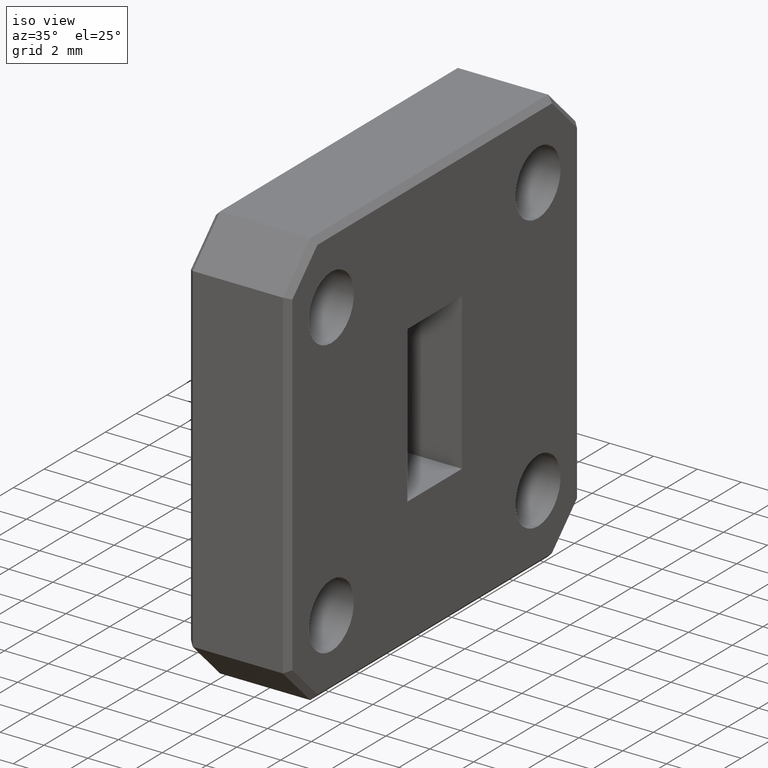
[diagram: clean part render]
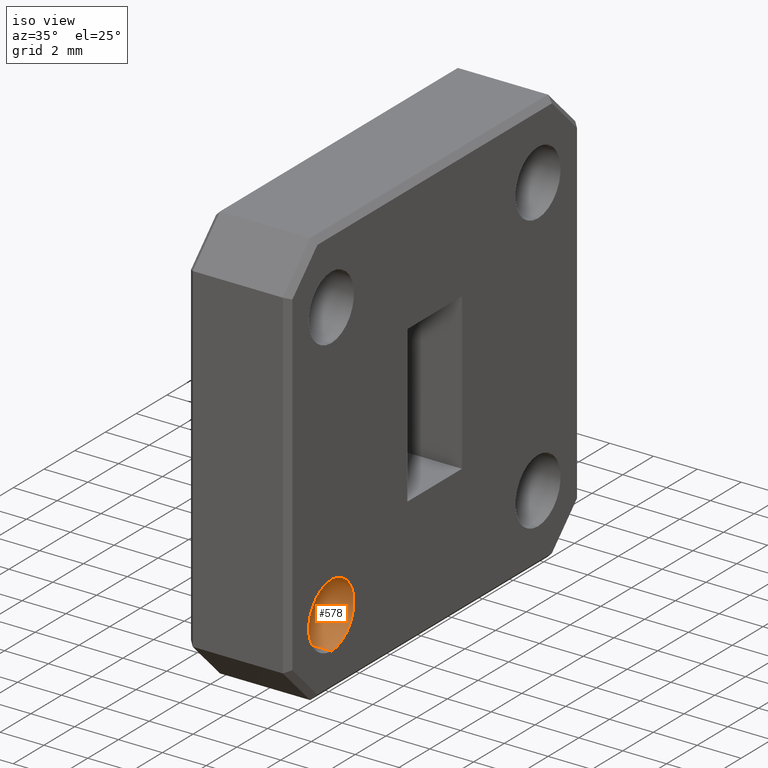
[diagram: same view with one face highlighted and labeled with its STEP entity id]
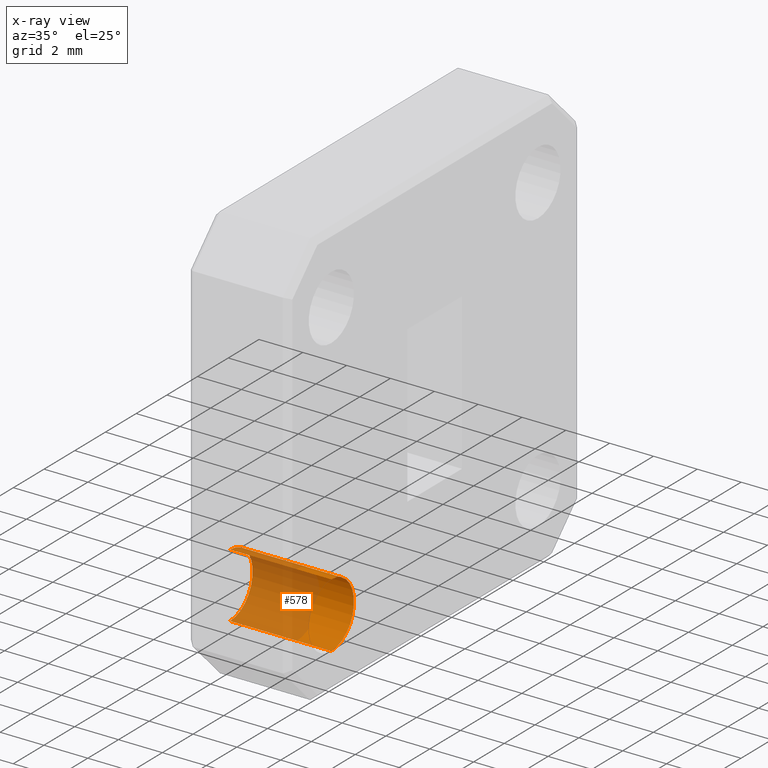
[diagram: x-ray of the same camera — body ghosted, the highlighted face saturated]
A machine part, iso view. The second image highlights one B-rep face of the part: STEP entity #578.
The next image is the same camera in x-ray: the body ghosted, the highlighted face saturated — about 64% of this face is hidden behind the body in this view.
In plain terms, the highlighted cylindrical surface (partial cylindrical patch) has radius 1.4732 mm, axis along (1, -0, -0).
Its self-contained STEP definition (entity closure, byte-faithful):
#14 = CARTESIAN_POINT ( 'NONE',  ( 0.1820000000000000000, -0.2650000000000000100, -0.2500000000000000000 ) ) ;
#44 = VERTEX_POINT ( 'NONE', #755 ) ;
#70 = AXIS2_PLACEMENT_3D ( 'NONE', #432, #85, #76 ) ;
#71 = FACE_OUTER_BOUND ( 'NONE', #425, .T. ) ;
#72 = CIRCLE ( 'NONE', #70, 0.05799999999999969800 ) ;
#76 = DIRECTION ( 'NONE',  ( 0.0000000000000000000, 0.0000000000000000000, -1.000000000000000000 ) ) ;
#85 = DIRECTION ( 'NONE',  ( 1.000000000000000000, -0.0000000000000000000, 0.0000000000000000000 ) ) ;
#180 = ORIENTED_EDGE ( 'NONE', *, *, #829, .T. ) ;
#249 = ORIENTED_EDGE ( 'NONE', *, *, #307, .T. ) ;
#298 = AXIS2_PLACEMENT_3D ( 'NONE', #14, #1009, #838 ) ;
#307 = EDGE_CURVE ( 'NONE', #1160, #786, #548, .T. ) ;
#388 = ORIENTED_EDGE ( 'NONE', *, *, #1000, .F. ) ;
#397 = CARTESIAN_POINT ( 'NONE',  ( 0.1820000000000000800, -0.2650000000000000100, -0.1920000000000005000 ) ) ;
#425 = EDGE_LOOP ( 'NONE', ( #388, #554, #180, #249 ) ) ;
#429 = EDGE_CURVE ( 'NONE', #873, #44, #72, .T. ) ;
#432 = CARTESIAN_POINT ( 'NONE',  ( 0.0000000000000000000, -0.2650000000000000100, -0.2500000000000000000 ) ) ;
#453 = CARTESIAN_POINT ( 'NONE',  ( 0.1820000000000000000, -0.2650000000000000100, -0.1920000000000002500 ) ) ;
#532 = VECTOR ( 'NONE', #1064, 39.37007874015748100 ) ;
#536 = VECTOR ( 'NONE', #994, 39.37007874015748100 ) ;
#548 = CIRCLE ( 'NONE', #1141, 0.05799999999999948900 ) ;
#554 = ORIENTED_EDGE ( 'NONE', *, *, #429, .F. ) ;
#578 = ADVANCED_FACE ( 'NONE', ( #71 ), #926, .F. ) ;
#600 = CARTESIAN_POINT ( 'NONE',  ( 0.1820000000000000800, -0.2650000000000000100, -0.2500000000000000000 ) ) ;
#642 = CARTESIAN_POINT ( 'NONE',  ( 0.1820000000000000800, -0.2650000000000000100, -0.3079999999999995000 ) ) ;
#755 = CARTESIAN_POINT ( 'NONE',  ( 0.0000000000000000000, -0.2650000000000000100, -0.1920000000000002500 ) ) ;
#776 = LINE ( 'NONE', #971, #532 ) ;
#786 = VERTEX_POINT ( 'NONE', #397 ) ;
#829 = EDGE_CURVE ( 'NONE', #873, #1160, #776, .T. ) ;
#838 = DIRECTION ( 'NONE',  ( 0.0000000000000000000, 0.0000000000000000000, -1.000000000000000000 ) ) ;
#873 = VERTEX_POINT ( 'NONE', #1166 ) ;
#883 = LINE ( 'NONE', #453, #536 ) ;
#894 = DIRECTION ( 'NONE',  ( 1.000000000000000000, -0.0000000000000000000, -0.0000000000000000000 ) ) ;
#926 = CYLINDRICAL_SURFACE ( 'NONE', #298, 0.05799999999999969800 ) ;
#971 = CARTESIAN_POINT ( 'NONE',  ( 0.1820000000000000000, -0.2650000000000000100, -0.3079999999999997200 ) ) ;
#994 = DIRECTION ( 'NONE',  ( 1.000000000000000000, -0.0000000000000000000, -0.0000000000000000000 ) ) ;
#1000 = EDGE_CURVE ( 'NONE', #44, #786, #883, .T. ) ;
#1009 = DIRECTION ( 'NONE',  ( 1.000000000000000000, -0.0000000000000000000, -0.0000000000000000000 ) ) ;
#1064 = DIRECTION ( 'NONE',  ( 1.000000000000000000, -0.0000000000000000000, -0.0000000000000000000 ) ) ;
#1141 = AXIS2_PLACEMENT_3D ( 'NONE', #600, #894, #1159 ) ;
#1159 = DIRECTION ( 'NONE',  ( 0.0000000000000000000, 0.0000000000000000000, -1.000000000000000000 ) ) ;
#1160 = VERTEX_POINT ( 'NONE', #642 ) ;
#1166 = CARTESIAN_POINT ( 'NONE',  ( 0.0000000000000000000, -0.2650000000000000100, -0.3079999999999997200 ) ) ;